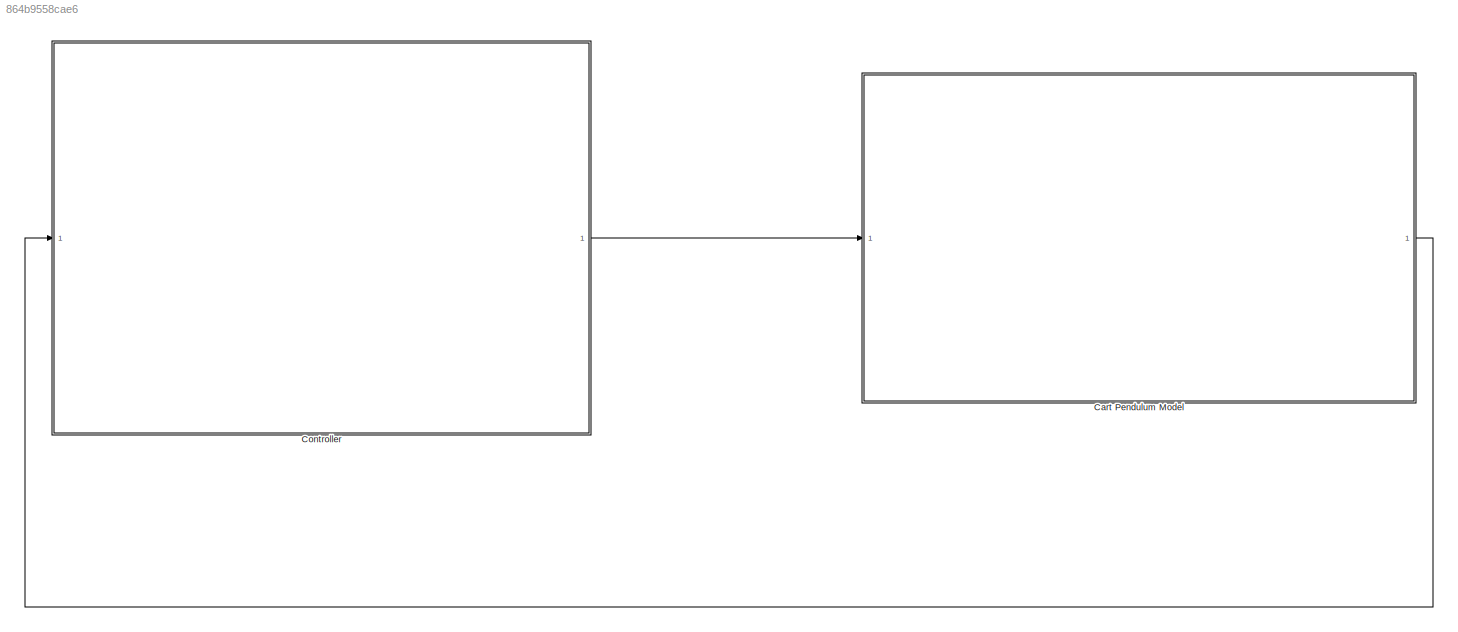
MODEL slx_864b9558cae6
KIND model
CONFIG AbsTol = auto
CONFIG EnableMultiTasking = off
CONFIG FixedStep = auto
CONFIG MaxStep = auto
CONFIG MinStep = auto
CONFIG RelTol = 1e-3
CONFIG SampleTimeConstraint = Unconstrained
CONFIG Solver = VariableStepAuto
CONFIG SolverName = VariableStepAuto
CONFIG StartTime = 0.0
CONFIG StopTime = 10.0
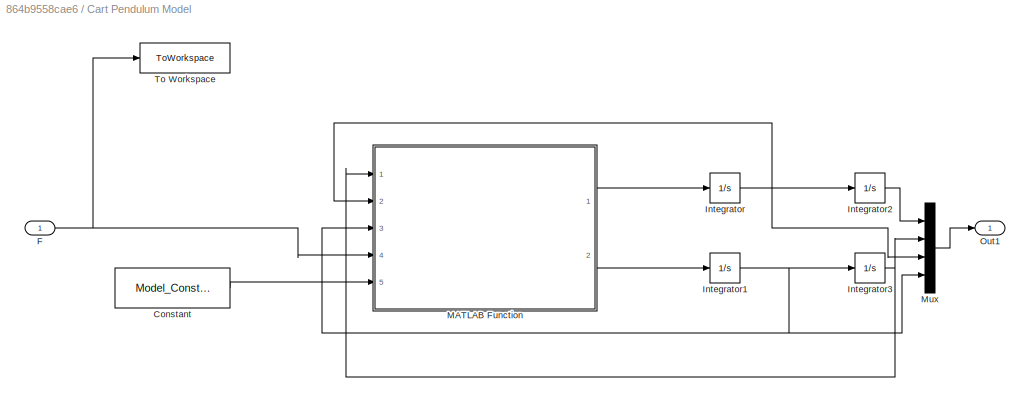
BLOCK [SubSystem] Cart Pendulum Model
  Ports = [1, 1]
  RequestExecContextInheritance = off
BLOCK [Constant] Cart Pendulum Model/Constant
  Value = Model_Constants
BLOCK [Inport] Cart Pendulum Model/F
  IconDisplay = Port number
BLOCK [Integrator] Cart Pendulum Model/Integrator
  InitialCondition = x0_a
  Ports = [1, 1]
BLOCK [Integrator] Cart Pendulum Model/Integrator1
  InitialCondition = x0_b
  Ports = [1, 1]
BLOCK [Integrator] Cart Pendulum Model/Integrator2
  Ports = [1, 1]
BLOCK [Integrator] Cart Pendulum Model/Integrator3
  Ports = [1, 1]
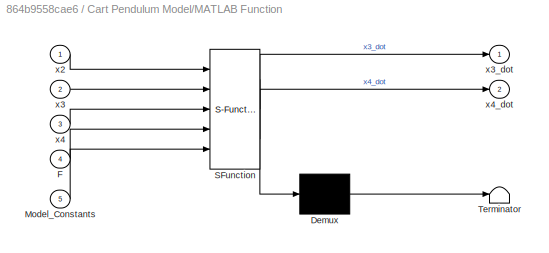
BLOCK [SubSystem] Cart Pendulum Model/MATLAB Function
  ErrorFcn = Stateflow.Translate.translate
  PermitHierarchicalResolution = ExplicitOnly
  Ports = [5, 2]
  RequestExecContextInheritance = off
  SFBlockType = MATLAB Function
  TreatAsAtomicUnit = on
BLOCK [Demux] Cart Pendulum Model/MATLAB Function/ Demux 
  Outputs = 1
  Ports = [1, 1]
BLOCK [S-Function] Cart Pendulum Model/MATLAB Function/ SFunction 
  EnableBusSupport = off
  FunctionName = sf_sfun
  PortCounts = [5 3]
  Ports = [5, 3]
  SFcnIsStateOwnerBlock = off
  SFunctionDeploymentMode = off
  Tag = Stateflow S-Function 2
BLOCK [Terminator] Cart Pendulum Model/MATLAB Function/ Terminator 
BLOCK [Inport] Cart Pendulum Model/MATLAB Function/F
  IconDisplay = Port number
  Port = 4
BLOCK [Inport] Cart Pendulum Model/MATLAB Function/Model_Constants
  IconDisplay = Port number
  Port = 5
BLOCK [Inport] Cart Pendulum Model/MATLAB Function/x2
  IconDisplay = Port number
BLOCK [Inport] Cart Pendulum Model/MATLAB Function/x3
  IconDisplay = Port number
  Port = 2
BLOCK [Outport] Cart Pendulum Model/MATLAB Function/x3_dot
  IconDisplay = Port number
BLOCK [Inport] Cart Pendulum Model/MATLAB Function/x4
  IconDisplay = Port number
  Port = 3
BLOCK [Outport] Cart Pendulum Model/MATLAB Function/x4_dot
  IconDisplay = Port number
  Port = 2
BLOCK [Mux] Cart Pendulum Model/Mux
  DisplayOption = bar
  Ports = [4, 1]
BLOCK [Outport] Cart Pendulum Model/Out1
  IconDisplay = Port number
BLOCK [ToWorkspace] Cart Pendulum Model/To Workspace
  FixptAsFi = on
  MaxDataPoints = inf
  Ports = [1]
  SampleTime = -1
  SaveFormat = Timeseries
  VariableName = F
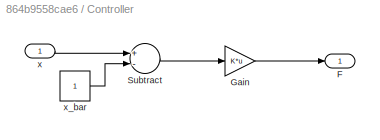
BLOCK [SubSystem] Controller
  Ports = [1, 1]
  RequestExecContextInheritance = off
BLOCK [Outport] Controller/F
  IconDisplay = Port number
BLOCK [Gain] Controller/Gain
  Gain = K*u
  OutDataTypeStr = Inherit: Inherit via internal rule
  ParamDataTypeStr = Inherit: Inherit via internal rule
  SaturateOnIntegerOverflow = off
BLOCK [Sum] Controller/Subtract
  InputSameDT = off
  Inputs = +-
  OutDataTypeStr = Inherit: Inherit via internal rule
  Ports = [2, 1]
  SaturateOnIntegerOverflow = off
BLOCK [Inport] Controller/x
  IconDisplay = Port number
BLOCK [Constant] Controller/x_bar
LINE Cart Pendulum Model/Constant:1 -> Cart Pendulum Model/MATLAB Function:5
NET Cart Pendulum Model/F:1 -> Cart Pendulum Model/MATLAB Function:4, Cart Pendulum Model/To Workspace:1
NET Cart Pendulum Model/Integrator1:1 -> Cart Pendulum Model/Integrator3:1, Cart Pendulum Model/MATLAB Function:3, Cart Pendulum Model/Mux:4
LINE Cart Pendulum Model/Integrator2:1 -> Cart Pendulum Model/Mux:1
NET Cart Pendulum Model/Integrator3:1 -> Cart Pendulum Model/MATLAB Function:1, Cart Pendulum Model/Mux:2
NET Cart Pendulum Model/Integrator:1 -> Cart Pendulum Model/Integrator2:1, Cart Pendulum Model/MATLAB Function:2, Cart Pendulum Model/Mux:3
LINE Cart Pendulum Model/MATLAB Function:1 -> Cart Pendulum Model/Integrator:1
LINE Cart Pendulum Model/MATLAB Function:2 -> Cart Pendulum Model/Integrator1:1
LINE Cart Pendulum Model/Mux:1 -> Cart Pendulum Model/Out1:1
LINE Cart Pendulum Model:1 -> Controller:1
LINE Controller/Gain:1 -> Controller/F:1
LINE Controller/Subtract:1 -> Controller/Gain:1
LINE Controller/x:1 -> Controller/Subtract:1
LINE Controller/x_bar:1 -> Controller/Subtract:2
LINE Controller:1 -> Cart Pendulum Model:1
note: NET lines group one-source signal fan-out (src -> all destinations, sorted); 1:1 wires keep LINE
CHART Cart Pendulum Model/MATLAB Function states=1 transitions=1
  STATE_LABEL 'eML_blk_kernel()'
  STATE_LABEL 'SCRIPT:\nfunction [x3_dot, x4_dot] = NonLinearEquations(x2 , x3 , x4 , F , Model_Constants  )\n    \n    % Model Constants\n    Mc = Model_Constants(1);\n    m  = Model_Constants(2);\n    lm = Model_Constants(3);\n    gm = Model_Constants(4);\n\n    % Equations for x3 dot: and x4 dot:\n    x3_nancy  = (x4^2)*lm*sin(x2) - gm*sin(x2) * cos(x2) + F;\n    x3_donkey = Mc + m - m*cos(x2)*cos(x2);\n    x3_dot = x3_n...<+191ch>'
